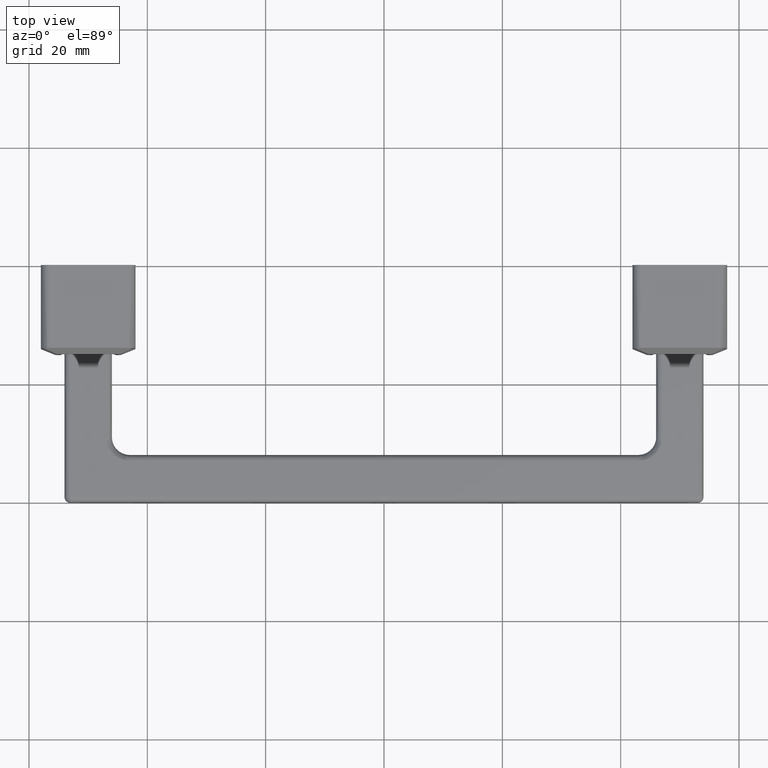
[diagram: clean part render]
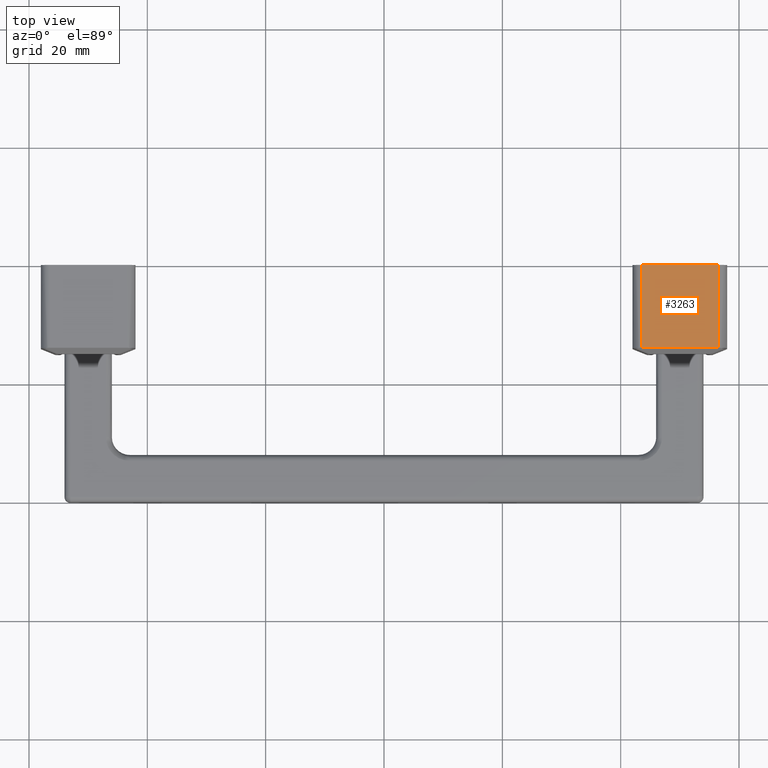
[diagram: same view with one face highlighted and labeled with its STEP entity id]
A machine part, top view. The second image highlights one B-rep face of the part: STEP entity #3263.
In plain terms, the highlighted face is a freeform B-spline surface patch.
Its self-contained STEP definition (entity closure, byte-faithful):
#2966=CARTESIAN_POINT('',(33.500000000000000,9.999999999999890,14.0));
#2967=VERTEX_POINT('',#2966);
#2981=CARTESIAN_POINT('',(33.500000000000000,9.999999999999890,0.0));
#2982=VERTEX_POINT('',#2981);
#2983=CARTESIAN_POINT('',(33.500000000000000,9.999999999999890,0.0));
#2984=CARTESIAN_POINT('',(33.500000000000000,9.999999999999890,14.0));
#2985=QUASI_UNIFORM_CURVE('',1,(#2983,#2984),.UNSPECIFIED.,.F.,.U.);
#2986=EDGE_CURVE('',#2982,#2967,#2985,.T.);
#3079=CARTESIAN_POINT('',(46.499699999999997,9.999999999999890,14.0));
#3080=VERTEX_POINT('',#3079);
#3081=CARTESIAN_POINT('',(46.499699999999997,9.999999999999890,0.0));
#3082=VERTEX_POINT('',#3081);
#3083=CARTESIAN_POINT('',(46.499699999999997,9.999999999999890,14.0));
#3084=CARTESIAN_POINT('',(46.499699999999997,9.999999999999890,0.0));
#3085=QUASI_UNIFORM_CURVE('',1,(#3083,#3084),.UNSPECIFIED.,.F.,.U.);
#3086=EDGE_CURVE('',#3080,#3082,#3085,.T.);
#3218=CARTESIAN_POINT('',(33.500000000000000,9.999999999999890,14.0));
#3219=CARTESIAN_POINT('',(46.499699999999997,9.999999999999890,14.0));
#3220=QUASI_UNIFORM_CURVE('',1,(#3218,#3219),.UNSPECIFIED.,.F.,.U.);
#3221=EDGE_CURVE('',#2967,#3080,#3220,.T.);
#3248=CARTESIAN_POINT('',(32.850665103084047,9.999999999999890,14.699299972865290));
#3249=CARTESIAN_POINT('',(47.149033385973070,9.999999999999890,14.699299972865290));
#3250=CARTESIAN_POINT('',(32.850665103084047,9.999999999999890,-0.699300348374546));
#3251=CARTESIAN_POINT('',(47.149033385973070,9.999999999999890,-0.699300348374546));
#3252=B_SPLINE_SURFACE_WITH_KNOTS('',1,1,((#3248,#3250),(#3249,#3251)),.UNSPECIFIED.,.F.,.F.,.U.,(2,2),(2,2),(0.0,14.298368282889021),(0.0,15.398600321239829),.UNSPECIFIED.);
#3253=CARTESIAN_POINT('',(46.499699999999997,9.999999999999890,0.0));
#3254=CARTESIAN_POINT('',(33.500000000000000,9.999999999999890,0.0));
#3255=QUASI_UNIFORM_CURVE('',1,(#3253,#3254),.UNSPECIFIED.,.F.,.U.);
#3256=EDGE_CURVE('',#3082,#2982,#3255,.T.);
#3257=ORIENTED_EDGE('',*,*,#3256,.T.);
#3258=ORIENTED_EDGE('',*,*,#2986,.T.);
#3259=ORIENTED_EDGE('',*,*,#3221,.T.);
#3260=ORIENTED_EDGE('',*,*,#3086,.T.);
#3261=EDGE_LOOP('',(#3257,#3258,#3259,#3260));
#3262=FACE_OUTER_BOUND('',#3261,.T.);
#3263=ADVANCED_FACE('',(#3262),#3252,.T.);